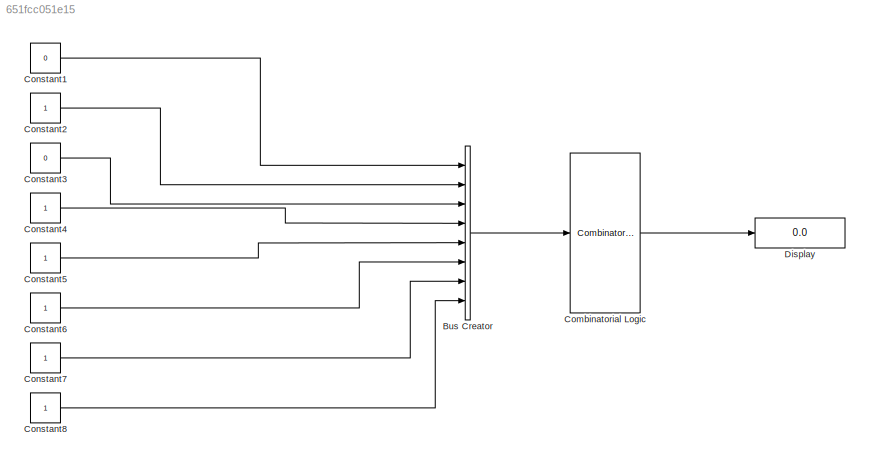
MODEL slx_651fcc051e15
KIND model
BLOCK [BusCreator] Bus Creator
  DisplayOption = bar
  Inputs = 8
  Ports = [8, 1]
BLOCK [CombinatorialLogic] Combinatorial Logic
  TruthTable = [0;1;0;1;0;1;0;0]
BLOCK [Constant] Constant1
  OutDataTypeStr = boolean
  Value = 0
BLOCK [Constant] Constant2
  OutDataTypeStr = boolean
BLOCK [Constant] Constant3
  OutDataTypeStr = boolean
  Value = 0
BLOCK [Constant] Constant4
  OutDataTypeStr = boolean
BLOCK [Constant] Constant5
  OutDataTypeStr = boolean
BLOCK [Constant] Constant6
  OutDataTypeStr = boolean
BLOCK [Constant] Constant7
  OutDataTypeStr = boolean
BLOCK [Constant] Constant8
  OutDataTypeStr = boolean
BLOCK [Display] Display
  Decimation = 1
  Ports = [1]
LINE Bus Creator:1 -> Combinatorial Logic:1
LINE Combinatorial Logic:1 -> Display:1
LINE Constant1:1 -> Bus Creator:1
LINE Constant2:1 -> Bus Creator:2
LINE Constant3:1 -> Bus Creator:3
LINE Constant4:1 -> Bus Creator:4
LINE Constant5:1 -> Bus Creator:5
LINE Constant6:1 -> Bus Creator:6
LINE Constant7:1 -> Bus Creator:7
LINE Constant8:1 -> Bus Creator:8
